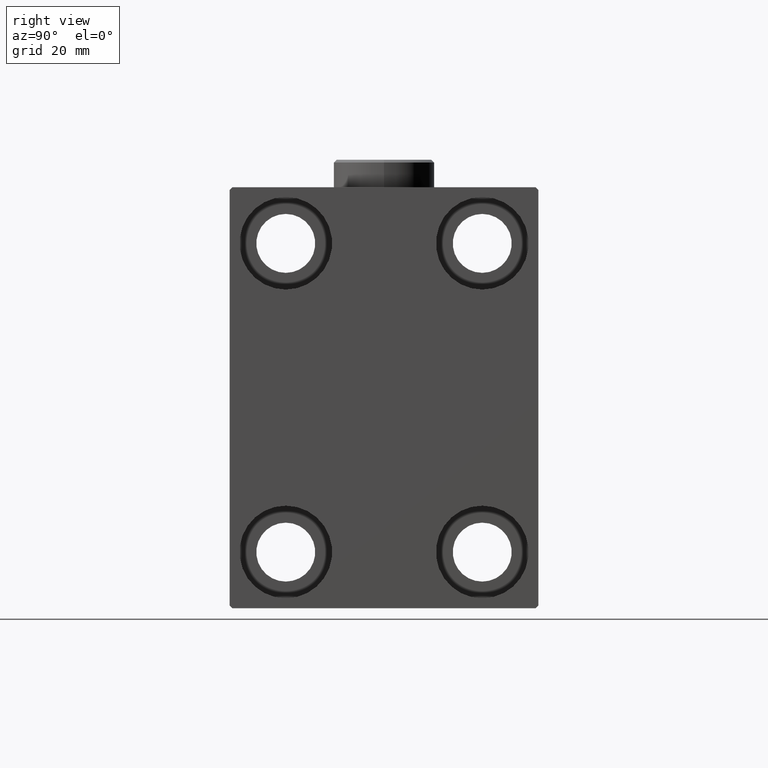
[diagram: clean part render]
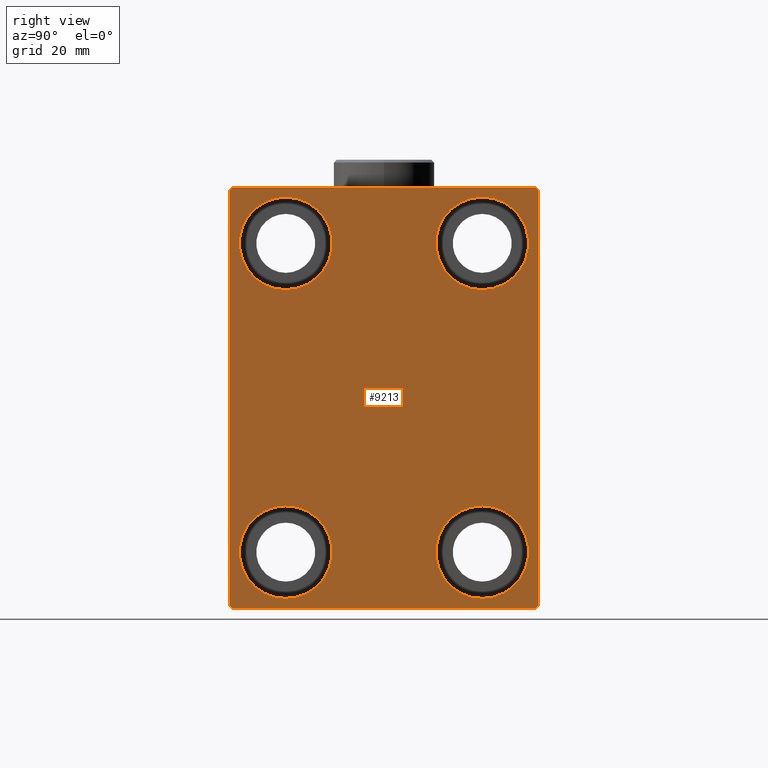
[diagram: same view with one face highlighted and labeled with its STEP entity id]
A machine part, right view. The second image highlights one B-rep face of the part: STEP entity #9213.
In plain terms, the highlighted planar face has unit normal (1, 0, 0).
Its self-contained STEP definition (entity closure, byte-faithful):
#161 = FACE_BOUND ( 'NONE', #13242, .T. ) ;
#316 = DIRECTION ( 'NONE',  ( 0.000000000000000000, 0.000000000000000000, 1.000000000000000000 ) ) ;
#516 = CARTESIAN_POINT ( 'NONE',  ( 75.00000000000000000, 27.50000000000000355, -37.00000000000000000 ) ) ;
#672 = CARTESIAN_POINT ( 'NONE',  ( 75.00000000000000000, -17.49999999999999645, 27.49999999999999645 ) ) ;
#1108 = DIRECTION ( 'NONE',  ( -1.000000000000000000, -0.000000000000000000, -0.000000000000000000 ) ) ;
#1275 = CARTESIAN_POINT ( 'NONE',  ( 75.00000000000000000, 27.00000000000001066, 37.50000000000000711 ) ) ;
#1951 = LINE ( 'NONE', #5131, #42209 ) ;
#2022 = ORIENTED_EDGE ( 'NONE', *, *, #15633, .T. ) ;
#2062 = VERTEX_POINT ( 'NONE', #29417 ) ;
#2627 = CIRCLE ( 'NONE', #19390, 8.250000000000000000 ) ;
#2689 = EDGE_CURVE ( 'NONE', #19245, #24763, #14370, .T. ) ;
#2724 = LINE ( 'NONE', #41353, #13233 ) ;
#2744 = ORIENTED_EDGE ( 'NONE', *, *, #43045, .T. ) ;
#2797 = DIRECTION ( 'NONE',  ( -0.000000000000000000, 0.7071067811865474617, 0.7071067811865474617 ) ) ;
#3259 = CARTESIAN_POINT ( 'NONE',  ( 75.00000000000000000, 17.49999999999999645, -27.50000000000000355 ) ) ;
#3615 = CARTESIAN_POINT ( 'NONE',  ( 75.00000000000000000, -17.49999999999999645, 27.49999999999999645 ) ) ;
#3872 = CARTESIAN_POINT ( 'NONE',  ( 75.00000000000000000, -32.25000000000000711, 32.25000000000000711 ) ) ;
#3908 = AXIS2_PLACEMENT_3D ( 'NONE', #34244, #6388, #41128 ) ;
#4613 = ORIENTED_EDGE ( 'NONE', *, *, #21233, .T. ) ;
#4974 = ORIENTED_EDGE ( 'NONE', *, *, #17557, .T. ) ;
#5131 = CARTESIAN_POINT ( 'NONE',  ( 75.00000000000000000, 27.49999999999999645, 37.50000000000000711 ) ) ;
#5529 = CIRCLE ( 'NONE', #9172, 8.250000000000000000 ) ;
#5532 = ORIENTED_EDGE ( 'NONE', *, *, #38934, .T. ) ;
#5596 = DIRECTION ( 'NONE',  ( -0.000000000000000000, 0.7071067811865474617, -0.7071067811865474617 ) ) ;
#6388 = DIRECTION ( 'NONE',  ( -1.000000000000000000, -0.000000000000000000, -0.000000000000000000 ) ) ;
#6961 = DIRECTION ( 'NONE',  ( 0.000000000000000000, 1.000000000000000000, 0.000000000000000000 ) ) ;
#7058 = CARTESIAN_POINT ( 'NONE',  ( 75.00000000000000000, 17.49999999999999645, -35.75000000000000711 ) ) ;
#7313 = CARTESIAN_POINT ( 'NONE',  ( 75.00000000000000000, 17.49999999999999645, -19.25000000000000355 ) ) ;
#7353 = DIRECTION ( 'NONE',  ( -1.000000000000000000, -0.000000000000000000, -0.000000000000000000 ) ) ;
#7917 = DIRECTION ( 'NONE',  ( 0.000000000000000000, 0.000000000000000000, -1.000000000000000000 ) ) ;
#9172 = AXIS2_PLACEMENT_3D ( 'NONE', #15180, #22472, #43075 ) ;
#9175 = VECTOR ( 'NONE', #5596, 1000.000000000000114 ) ;
#9213 = ADVANCED_FACE ( 'NONE', ( #10666, #161, #39231, #28461, #14771 ), #28694, .T. ) ;
#9512 = CARTESIAN_POINT ( 'NONE',  ( 75.00000000000000000, -17.49999999999999645, 19.25000000000000000 ) ) ;
#10058 = AXIS2_PLACEMENT_3D ( 'NONE', #3615, #17118, #21189 ) ;
#10277 = CIRCLE ( 'NONE', #24121, 8.249999999999992895 ) ;
#10335 = VECTOR ( 'NONE', #6961, 1000.000000000000000 ) ;
#10666 = FACE_BOUND ( 'NONE', #13653, .T. ) ;
#11151 = CARTESIAN_POINT ( 'NONE',  ( 75.00000000000000000, 17.50000000000000355, 27.49999999999999645 ) ) ;
#11162 = DIRECTION ( 'NONE',  ( 0.000000000000000000, 0.000000000000000000, -1.000000000000000000 ) ) ;
#11344 = EDGE_CURVE ( 'NONE', #30435, #22088, #44053, .T. ) ;
#11351 = CARTESIAN_POINT ( 'NONE',  ( 75.00000000000000000, 0.000000000000000000, 0.000000000000000000 ) ) ;
#11635 = VERTEX_POINT ( 'NONE', #9512 ) ;
#11875 = VERTEX_POINT ( 'NONE', #1275 ) ;
#12778 = CIRCLE ( 'NONE', #38296, 8.250000000000000000 ) ;
#12795 = CARTESIAN_POINT ( 'NONE',  ( 75.00000000000000000, -27.50000000000000355, -37.00000000000000000 ) ) ;
#13233 = VECTOR ( 'NONE', #16201, 1000.000000000000000 ) ;
#13242 = EDGE_LOOP ( 'NONE', ( #13732, #33000 ) ) ;
#13653 = EDGE_LOOP ( 'NONE', ( #23634, #2744 ) ) ;
#13732 = ORIENTED_EDGE ( 'NONE', *, *, #22608, .T. ) ;
#14241 = CARTESIAN_POINT ( 'NONE',  ( 75.00000000000000000, -17.50000000000000355, -27.50000000000000355 ) ) ;
#14366 = ORIENTED_EDGE ( 'NONE', *, *, #20346, .T. ) ;
#14370 = LINE ( 'NONE', #42723, #27119 ) ;
#14599 = DIRECTION ( 'NONE',  ( -1.000000000000000000, -0.000000000000000000, -0.000000000000000000 ) ) ;
#14624 = VERTEX_POINT ( 'NONE', #44767 ) ;
#14771 = FACE_OUTER_BOUND ( 'NONE', #30194, .T. ) ;
#14922 = DIRECTION ( 'NONE',  ( -1.000000000000000000, -0.000000000000000000, -0.000000000000000000 ) ) ;
#15180 = CARTESIAN_POINT ( 'NONE',  ( 75.00000000000000000, 17.49999999999999645, -27.50000000000000355 ) ) ;
#15633 = EDGE_CURVE ( 'NONE', #41625, #11875, #41957, .T. ) ;
#16201 = DIRECTION ( 'NONE',  ( 0.000000000000000000, -9.251858538542970348E-17, 1.000000000000000000 ) ) ;
#16704 = CARTESIAN_POINT ( 'NONE',  ( 75.00000000000000000, -27.50000000000000355, 37.00000000000001421 ) ) ;
#16940 = CIRCLE ( 'NONE', #34446, 8.250000000000000000 ) ;
#17118 = DIRECTION ( 'NONE',  ( -1.000000000000000000, -0.000000000000000000, -0.000000000000000000 ) ) ;
#17219 = VECTOR ( 'NONE', #2797, 1000.000000000000114 ) ;
#17557 = EDGE_CURVE ( 'NONE', #27207, #32863, #43949, .T. ) ;
#19245 = VERTEX_POINT ( 'NONE', #16704 ) ;
#19390 = AXIS2_PLACEMENT_3D ( 'NONE', #14241, #14922, #316 ) ;
#20065 = ORIENTED_EDGE ( 'NONE', *, *, #11344, .T. ) ;
#20346 = EDGE_CURVE ( 'NONE', #11875, #31107, #1951, .T. ) ;
#20523 = AXIS2_PLACEMENT_3D ( 'NONE', #672, #14599, #29430 ) ;
#21068 = EDGE_CURVE ( 'NONE', #36884, #11635, #43661, .T. ) ;
#21189 = DIRECTION ( 'NONE',  ( 0.000000000000000000, 0.000000000000000000, 1.000000000000000000 ) ) ;
#21233 = EDGE_CURVE ( 'NONE', #22088, #30435, #10277, .T. ) ;
#21640 = CARTESIAN_POINT ( 'NONE',  ( 75.00000000000000000, -17.50000000000000355, -27.50000000000000355 ) ) ;
#21877 = VERTEX_POINT ( 'NONE', #7058 ) ;
#22088 = VERTEX_POINT ( 'NONE', #40861 ) ;
#22472 = DIRECTION ( 'NONE',  ( -1.000000000000000000, -0.000000000000000000, -0.000000000000000000 ) ) ;
#22608 = EDGE_CURVE ( 'NONE', #11635, #36884, #34385, .T. ) ;
#22938 = CARTESIAN_POINT ( 'NONE',  ( 75.00000000000000000, -32.25000000000000000, -32.25000000000000000 ) ) ;
#22990 = CARTESIAN_POINT ( 'NONE',  ( 75.00000000000000000, 27.00000000000000355, -37.50000000000000000 ) ) ;
#23123 = EDGE_CURVE ( 'NONE', #32863, #41625, #2724, .T. ) ;
#23195 = CARTESIAN_POINT ( 'NONE',  ( 75.00000000000000000, -27.00000000000000355, -37.50000000000000000 ) ) ;
#23634 = ORIENTED_EDGE ( 'NONE', *, *, #29439, .T. ) ;
#23828 = VERTEX_POINT ( 'NONE', #7313 ) ;
#23923 = ORIENTED_EDGE ( 'NONE', *, *, #37172, .T. ) ;
#24121 = AXIS2_PLACEMENT_3D ( 'NONE', #11151, #1108, #25064 ) ;
#24295 = CARTESIAN_POINT ( 'NONE',  ( 75.00000000000000000, -27.50000000000000355, -37.50000000000000000 ) ) ;
#24431 = VECTOR ( 'NONE', #34617, 1000.000000000000000 ) ;
#24763 = VERTEX_POINT ( 'NONE', #12795 ) ;
#25064 = DIRECTION ( 'NONE',  ( 0.000000000000000000, 0.000000000000000000, 1.000000000000000000 ) ) ;
#25239 = EDGE_LOOP ( 'NONE', ( #20065, #4613 ) ) ;
#25264 = DIRECTION ( 'NONE',  ( 1.000000000000000000, 0.000000000000000000, 0.000000000000000000 ) ) ;
#27119 = VECTOR ( 'NONE', #11162, 1000.000000000000000 ) ;
#27207 = VERTEX_POINT ( 'NONE', #22990 ) ;
#28461 = FACE_BOUND ( 'NONE', #30631, .T. ) ;
#28481 = DIRECTION ( 'NONE',  ( -1.000000000000000000, -0.000000000000000000, -0.000000000000000000 ) ) ;
#28659 = CARTESIAN_POINT ( 'NONE',  ( 75.00000000000000000, 32.25000000000019185, 32.24999999999975131 ) ) ;
#28694 = PLANE ( 'NONE',  #35308 ) ;
#29129 = DIRECTION ( 'NONE',  ( 0.000000000000000000, -1.000000000000000000, -1.261617073437677999E-16 ) ) ;
#29232 = EDGE_CURVE ( 'NONE', #42831, #27207, #35276, .T. ) ;
#29417 = CARTESIAN_POINT ( 'NONE',  ( 75.00000000000000000, -17.50000000000000355, -19.25000000000000355 ) ) ;
#29430 = DIRECTION ( 'NONE',  ( 0.000000000000000000, 0.000000000000000000, 1.000000000000000000 ) ) ;
#29439 = EDGE_CURVE ( 'NONE', #21877, #23828, #16940, .T. ) ;
#29808 = ORIENTED_EDGE ( 'NONE', *, *, #39199, .T. ) ;
#30021 = LINE ( 'NONE', #22938, #9175 ) ;
#30194 = EDGE_LOOP ( 'NONE', ( #14366, #39833, #42535, #29808, #44259, #4974, #31392, #2022 ) ) ;
#30365 = CARTESIAN_POINT ( 'NONE',  ( 75.00000000000000000, -17.49999999999999645, 35.74999999999999289 ) ) ;
#30435 = VERTEX_POINT ( 'NONE', #34356 ) ;
#30631 = EDGE_LOOP ( 'NONE', ( #5532, #23923 ) ) ;
#31107 = VERTEX_POINT ( 'NONE', #44512 ) ;
#31392 = ORIENTED_EDGE ( 'NONE', *, *, #23123, .T. ) ;
#31805 = DIRECTION ( 'NONE',  ( 0.000000000000000000, 0.000000000000000000, 1.000000000000000000 ) ) ;
#32863 = VERTEX_POINT ( 'NONE', #516 ) ;
#33000 = ORIENTED_EDGE ( 'NONE', *, *, #21068, .T. ) ;
#33206 = VECTOR ( 'NONE', #38839, 1000.000000000000114 ) ;
#34244 = CARTESIAN_POINT ( 'NONE',  ( 75.00000000000000000, 17.50000000000000355, 27.49999999999999645 ) ) ;
#34356 = CARTESIAN_POINT ( 'NONE',  ( 75.00000000000000000, 17.50000000000000355, 19.25000000000000000 ) ) ;
#34385 = CIRCLE ( 'NONE', #20523, 8.249999999999992895 ) ;
#34446 = AXIS2_PLACEMENT_3D ( 'NONE', #3259, #7353, #31805 ) ;
#34617 = DIRECTION ( 'NONE',  ( -0.000000000000000000, -0.7071067811865426878, 0.7071067811865524577 ) ) ;
#34978 = CARTESIAN_POINT ( 'NONE',  ( 75.00000000000000000, 27.49999999999999645, 37.00000000000001421 ) ) ;
#35161 = LINE ( 'NONE', #3872, #33206 ) ;
#35276 = LINE ( 'NONE', #24295, #10335 ) ;
#35308 = AXIS2_PLACEMENT_3D ( 'NONE', #11351, #25264, #7917 ) ;
#36884 = VERTEX_POINT ( 'NONE', #30365 ) ;
#37172 = EDGE_CURVE ( 'NONE', #2062, #14624, #12778, .T. ) ;
#37967 = CARTESIAN_POINT ( 'NONE',  ( 75.00000000000000000, 32.25000000000000000, -32.25000000000000000 ) ) ;
#38296 = AXIS2_PLACEMENT_3D ( 'NONE', #21640, #28481, #42466 ) ;
#38839 = DIRECTION ( 'NONE',  ( 0.000000000000000000, -0.7071067811865474617, -0.7071067811865474617 ) ) ;
#38934 = EDGE_CURVE ( 'NONE', #14624, #2062, #2627, .T. ) ;
#39199 = EDGE_CURVE ( 'NONE', #24763, #42831, #30021, .T. ) ;
#39231 = FACE_BOUND ( 'NONE', #25239, .T. ) ;
#39833 = ORIENTED_EDGE ( 'NONE', *, *, #42455, .T. ) ;
#40861 = CARTESIAN_POINT ( 'NONE',  ( 75.00000000000000000, 17.50000000000000355, 35.74999999999999289 ) ) ;
#41128 = DIRECTION ( 'NONE',  ( 0.000000000000000000, 0.000000000000000000, 1.000000000000000000 ) ) ;
#41353 = CARTESIAN_POINT ( 'NONE',  ( 75.00000000000000000, 27.50000000000000355, -37.50000000000000000 ) ) ;
#41625 = VERTEX_POINT ( 'NONE', #34978 ) ;
#41957 = LINE ( 'NONE', #28659, #24431 ) ;
#42209 = VECTOR ( 'NONE', #29129, 1000.000000000000000 ) ;
#42455 = EDGE_CURVE ( 'NONE', #31107, #19245, #35161, .T. ) ;
#42466 = DIRECTION ( 'NONE',  ( 0.000000000000000000, 0.000000000000000000, 1.000000000000000000 ) ) ;
#42535 = ORIENTED_EDGE ( 'NONE', *, *, #2689, .T. ) ;
#42723 = CARTESIAN_POINT ( 'NONE',  ( 75.00000000000000000, -27.50000000000000355, 37.50000000000000000 ) ) ;
#42831 = VERTEX_POINT ( 'NONE', #23195 ) ;
#43045 = EDGE_CURVE ( 'NONE', #23828, #21877, #5529, .T. ) ;
#43075 = DIRECTION ( 'NONE',  ( 0.000000000000000000, 0.000000000000000000, 1.000000000000000000 ) ) ;
#43661 = CIRCLE ( 'NONE', #10058, 8.249999999999992895 ) ;
#43949 = LINE ( 'NONE', #37967, #17219 ) ;
#44053 = CIRCLE ( 'NONE', #3908, 8.249999999999992895 ) ;
#44259 = ORIENTED_EDGE ( 'NONE', *, *, #29232, .T. ) ;
#44512 = CARTESIAN_POINT ( 'NONE',  ( 75.00000000000000000, -27.00000000000001776, 37.50000000000000000 ) ) ;
#44767 = CARTESIAN_POINT ( 'NONE',  ( 75.00000000000000000, -17.50000000000000355, -35.75000000000000711 ) ) ;